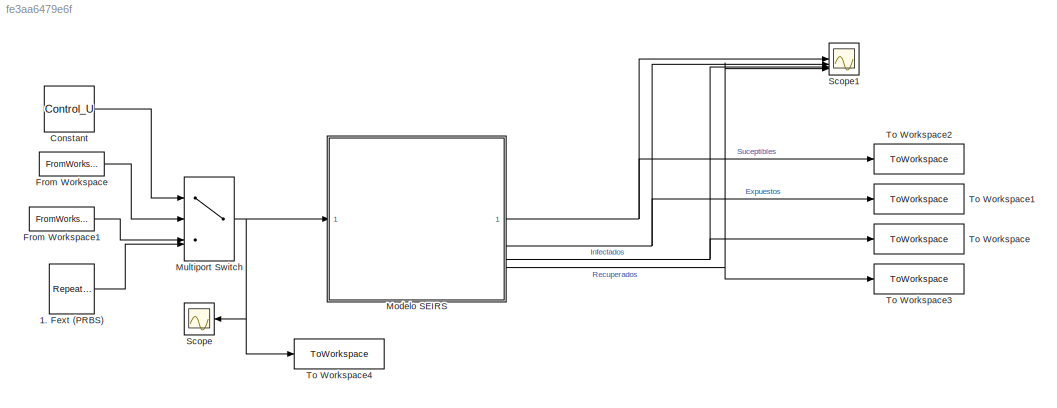
MODEL slx_fe3aa6479e6f
KIND model
CONFIG AbsTol = auto
CONFIG EnableMultiTasking = off
CONFIG FixedStep = auto
CONFIG MaxStep = auto
CONFIG MinStep = auto
CONFIG RelTol = 1e-3
CONFIG SampleTimeConstraint = Unconstrained
CONFIG SolverName = VariableStepAuto
CONFIG StartTime = 0.0
CONFIG StopTime = T
WORKSPACE source: mxarray member
WORKSPACE x = [0.0844291205376 0.0972801431163 0.171504041231 0.000911075297271]
BLOCK [Reference] 1. Fext (PRBS)  REF=simulink/Sources/Repeating
Sequence
Stair
  SourceBlock = simulink/Sources/Repeating\nSequence\nStair
  SourceType = Repeating Sequence Stair
BLOCK [Constant] Constant
  Value = Control_U
BLOCK [FromWorkspace] From Workspace
  VariableName = beta_U
BLOCK [FromWorkspace] From Workspace1
  VariableName = beta_seno
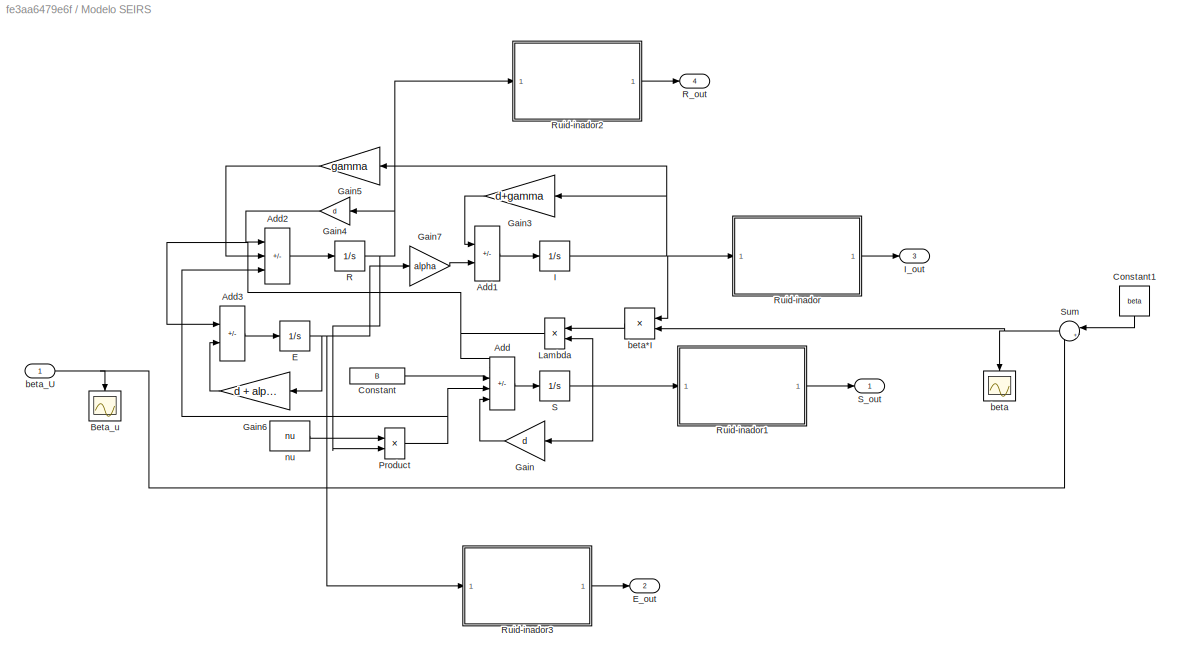
BLOCK [SubSystem] Modelo SEIRS
BLOCK [Sum] Modelo SEIRS/Add
  IconShape = rectangular
  Inputs = -++-
BLOCK [Sum] Modelo SEIRS/Add1
  IconShape = rectangular
  Inputs = -+
BLOCK [Sum] Modelo SEIRS/Add2
  IconShape = rectangular
  Inputs = -+-
BLOCK [Sum] Modelo SEIRS/Add3
  IconShape = rectangular
  Inputs = +-
BLOCK [Scope] Modelo SEIRS/Beta_u
  Floating = off
  NumInputPorts = 1
  ScopeSpecificationString = Simulink.scopes.TimeScopeBlockCfg('CurrentConfiguration', extmgr.ConfigurationSet(extmgr.Configuration('Core','General UI',true),extmgr.Configuration('Core','Source UI',true),extmgr.Configuration('Sources','WiredSimulink',true,'DataLoggingVariableName','ScopeData2'),extmgr.Configuration('Visuals','Time Domain',true,'SerializedDisplays',{struct('MinYLimReal','-1.00000','MaxYLimReal','1.00000','YLab...<+1419ch>
BLOCK [Constant] Modelo SEIRS/Constant
  Value = B
BLOCK [Constant] Modelo SEIRS/Constant1
  NameLocation = left
  Value = beta
BLOCK [Integrator] Modelo SEIRS/E
  InitialCondition = ci(2)
  LimitOutput = on
  LowerSaturationLimit = 0
BLOCK [Outport] Modelo SEIRS/E_out
  Port = 2
BLOCK [Gain] Modelo SEIRS/Gain
  Gain = d
  NameLocation = top
BLOCK [Gain] Modelo SEIRS/Gain3
  Gain = d+gamma
  NameLocation = top
BLOCK [Gain] Modelo SEIRS/Gain4
  Gain = d
  NameLocation = top
BLOCK [Gain] Modelo SEIRS/Gain5
  Gain = gamma
  NameLocation = top
BLOCK [Gain] Modelo SEIRS/Gain6
  Gain = d + alpha
  NameLocation = top
BLOCK [Gain] Modelo SEIRS/Gain7
  Gain = alpha
BLOCK [Integrator] Modelo SEIRS/I
  InitialCondition = ci(3)
  LimitOutput = on
  LowerSaturationLimit = 0
BLOCK [Outport] Modelo SEIRS/I_out 
  Port = 3
BLOCK [Product] Modelo SEIRS/Lambda
  NameLocation = top
BLOCK [Product] Modelo SEIRS/Product
BLOCK [Integrator] Modelo SEIRS/R
  InitialCondition = ci(4)
  LimitOutput = on
  LowerSaturationLimit = 0
BLOCK [Outport] Modelo SEIRS/R_out
  Port = 4
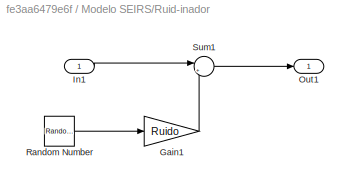
BLOCK [SubSystem] Modelo SEIRS/Ruid-inador
BLOCK [Gain] Modelo SEIRS/Ruid-inador/Gain1
  Gain = Ruido
BLOCK [Inport] Modelo SEIRS/Ruid-inador/In1
BLOCK [Outport] Modelo SEIRS/Ruid-inador/Out1
BLOCK [RandomNumber] Modelo SEIRS/Ruid-inador/Random Number
  SampleTime = 0.1
  Seed = 117
  Variance = 1e-8
BLOCK [Sum] Modelo SEIRS/Ruid-inador/Sum1
  Inputs = |++
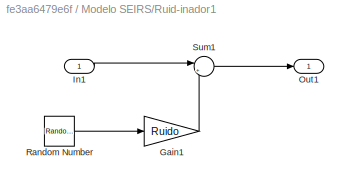
BLOCK [SubSystem] Modelo SEIRS/Ruid-inador1
BLOCK [Gain] Modelo SEIRS/Ruid-inador1/Gain1
  Gain = Ruido
BLOCK [Inport] Modelo SEIRS/Ruid-inador1/In1
BLOCK [Outport] Modelo SEIRS/Ruid-inador1/Out1
BLOCK [RandomNumber] Modelo SEIRS/Ruid-inador1/Random Number
  SampleTime = 0.1
  Seed = 117
  Variance = 1e-8
BLOCK [Sum] Modelo SEIRS/Ruid-inador1/Sum1
  Inputs = |++
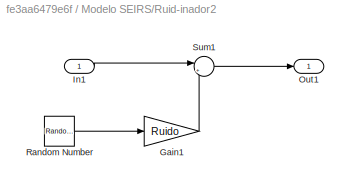
BLOCK [SubSystem] Modelo SEIRS/Ruid-inador2
BLOCK [Gain] Modelo SEIRS/Ruid-inador2/Gain1
  Gain = Ruido
BLOCK [Inport] Modelo SEIRS/Ruid-inador2/In1
BLOCK [Outport] Modelo SEIRS/Ruid-inador2/Out1
BLOCK [RandomNumber] Modelo SEIRS/Ruid-inador2/Random Number
  SampleTime = 0.1
  Seed = 117
  Variance = 1e-8
BLOCK [Sum] Modelo SEIRS/Ruid-inador2/Sum1
  Inputs = |++
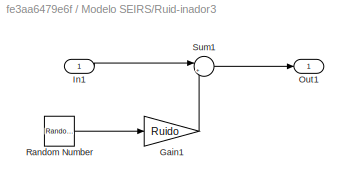
BLOCK [SubSystem] Modelo SEIRS/Ruid-inador3
BLOCK [Gain] Modelo SEIRS/Ruid-inador3/Gain1
  Gain = Ruido
BLOCK [Inport] Modelo SEIRS/Ruid-inador3/In1
BLOCK [Outport] Modelo SEIRS/Ruid-inador3/Out1
BLOCK [RandomNumber] Modelo SEIRS/Ruid-inador3/Random Number
  SampleTime = 0.1
  Seed = 117
  Variance = 1e-8
BLOCK [Sum] Modelo SEIRS/Ruid-inador3/Sum1
  Inputs = |++
BLOCK [Integrator] Modelo SEIRS/S
  InitialCondition = ci(1)
  LimitOutput = on
  LowerSaturationLimit = 0
BLOCK [Outport] Modelo SEIRS/S_out
BLOCK [Sum] Modelo SEIRS/Sum
  Inputs = |++
  NameLocation = top
BLOCK [Scope] Modelo SEIRS/beta
  Floating = off
  NumInputPorts = 1
  ScopeSpecificationString = Simulink.scopes.TimeScopeBlockCfg('CurrentConfiguration', extmgr.ConfigurationSet(extmgr.Configuration('Core','General UI',true),extmgr.Configuration('Core','Source UI',true),extmgr.Configuration('Sources','WiredSimulink',true,'DataLoggingVariableName','ScopeData1'),extmgr.Configuration('Visuals','Time Domain',true,'SerializedDisplays',{struct('MinYLimReal','0.1','MaxYLimReal','0.3','YLabelReal','...<+1382ch>
BLOCK [Product] Modelo SEIRS/beta*I
  NameLocation = top
BLOCK [Inport] Modelo SEIRS/beta_U
BLOCK [Constant] Modelo SEIRS/nu
  Value = nu
BLOCK [MultiPortSwitch] Multiport Switch
  InputSameDT = off
  SaturateOnIntegerOverflow = off
BLOCK [Scope] Scope
  Floating = off
  NameLocation = top
  NumInputPorts = 1
  ScopeSpecificationString = Simulink.scopes.TimeScopeBlockCfg('CurrentConfiguration', extmgr.ConfigurationSet(extmgr.Configuration('Core','General UI',true),extmgr.Configuration('Core','Source UI',true),extmgr.Configuration('Sources','WiredSimulink',true,'DataLoggingVariableName','ScopeData1'),extmgr.Configuration('Visuals','Time Domain',true,'SerializedDisplays',{struct('MinYLimReal','0.475','MaxYLimReal','0.725','YLabelRea...<+1475ch>
BLOCK [Scope] Scope1
  Floating = off
  NumInputPorts = 4
  ScopeSpecificationString = Simulink.scopes.TimeScopeBlockCfg('CurrentConfiguration', extmgr.ConfigurationSet(extmgr.Configuration('Core','General UI',true),extmgr.Configuration('Core','Source UI',true),extmgr.Configuration('Sources','WiredSimulink',true,'DataLoggingVariableName','ScopeData2'),extmgr.Configuration('Visuals','Time Domain',true,'SerializedDisplays',{struct('MinYLimReal','0.10278','MaxYLimReal','0.15173','YLabe...<+3878ch>
BLOCK [ToWorkspace] To Workspace
  FixptAsFi = on
  MaxDataPoints = inf
  SampleTime = -1
  SaveFormat = Structure With Time
  VariableName = I
BLOCK [ToWorkspace] To Workspace1
  FixptAsFi = on
  MaxDataPoints = inf
  SampleTime = -1
  SaveFormat = Structure With Time
  VariableName = E
BLOCK [ToWorkspace] To Workspace2
  FixptAsFi = on
  MaxDataPoints = inf
  SampleTime = -1
  SaveFormat = Structure With Time
  VariableName = S
BLOCK [ToWorkspace] To Workspace3
  FixptAsFi = on
  MaxDataPoints = inf
  SampleTime = -1
  SaveFormat = Structure With Time
  VariableName = R
BLOCK [ToWorkspace] To Workspace4
  FixptAsFi = on
  MaxDataPoints = inf
  SampleTime = -1
  SaveFormat = Structure With Time
  VariableName = Entrada_U
LINE 1. Fext (PRBS):1 -> Multiport Switch:4
LINE Constant:1 -> Multiport Switch:1
LINE From Workspace1:1 -> Multiport Switch:3
LINE From Workspace:1 -> Multiport Switch:2
LINE Modelo SEIRS/Add1:1 -> Modelo SEIRS/I:1
LINE Modelo SEIRS/Add2:1 -> Modelo SEIRS/R:1
LINE Modelo SEIRS/Add3:1 -> Modelo SEIRS/E:1
LINE Modelo SEIRS/Add:1 -> Modelo SEIRS/S:1
LINE Modelo SEIRS/Constant1:1 -> Modelo SEIRS/Sum:1
LINE Modelo SEIRS/Constant:1 -> Modelo SEIRS/Add:2
NET Modelo SEIRS/E:1 -> Modelo SEIRS/Gain6:1, Modelo SEIRS/Gain7:1, Modelo SEIRS/Ruid-inador3:1
LINE Modelo SEIRS/Gain3:1 -> Modelo SEIRS/Add1:1
LINE Modelo SEIRS/Gain4:1 -> Modelo SEIRS/Add2:1
LINE Modelo SEIRS/Gain5:1 -> Modelo SEIRS/Add2:2
LINE Modelo SEIRS/Gain6:1 -> Modelo SEIRS/Add3:2
LINE Modelo SEIRS/Gain7:1 -> Modelo SEIRS/Add1:2
LINE Modelo SEIRS/Gain:1 -> Modelo SEIRS/Add:4
NET Modelo SEIRS/I:1 -> Modelo SEIRS/Gain3:1, Modelo SEIRS/Gain5:1, Modelo SEIRS/Ruid-inador:1, Modelo SEIRS/beta*I:1
NET Modelo SEIRS/Lambda:1 -> Modelo SEIRS/Add3:1, Modelo SEIRS/Add:1
NET Modelo SEIRS/Product:1 -> Modelo SEIRS/Add2:3, Modelo SEIRS/Add:3
NET Modelo SEIRS/R:1 -> Modelo SEIRS/Gain4:1, Modelo SEIRS/Product:2, Modelo SEIRS/Ruid-inador2:1
LINE Modelo SEIRS/Ruid-inador/Gain1:1 -> Modelo SEIRS/Ruid-inador/Sum1:2
LINE Modelo SEIRS/Ruid-inador/In1:1 -> Modelo SEIRS/Ruid-inador/Sum1:1
LINE Modelo SEIRS/Ruid-inador/Random Number:1 -> Modelo SEIRS/Ruid-inador/Gain1:1
LINE Modelo SEIRS/Ruid-inador/Sum1:1 -> Modelo SEIRS/Ruid-inador/Out1:1
LINE Modelo SEIRS/Ruid-inador1/Gain1:1 -> Modelo SEIRS/Ruid-inador1/Sum1:2
LINE Modelo SEIRS/Ruid-inador1/In1:1 -> Modelo SEIRS/Ruid-inador1/Sum1:1
LINE Modelo SEIRS/Ruid-inador1/Random Number:1 -> Modelo SEIRS/Ruid-inador1/Gain1:1
LINE Modelo SEIRS/Ruid-inador1/Sum1:1 -> Modelo SEIRS/Ruid-inador1/Out1:1
LINE Modelo SEIRS/Ruid-inador1:1 -> Modelo SEIRS/S_out:1
LINE Modelo SEIRS/Ruid-inador2/Gain1:1 -> Modelo SEIRS/Ruid-inador2/Sum1:2
LINE Modelo SEIRS/Ruid-inador2/In1:1 -> Modelo SEIRS/Ruid-inador2/Sum1:1
LINE Modelo SEIRS/Ruid-inador2/Random Number:1 -> Modelo SEIRS/Ruid-inador2/Gain1:1
LINE Modelo SEIRS/Ruid-inador2/Sum1:1 -> Modelo SEIRS/Ruid-inador2/Out1:1
LINE Modelo SEIRS/Ruid-inador2:1 -> Modelo SEIRS/R_out:1
LINE Modelo SEIRS/Ruid-inador3/Gain1:1 -> Modelo SEIRS/Ruid-inador3/Sum1:2
LINE Modelo SEIRS/Ruid-inador3/In1:1 -> Modelo SEIRS/Ruid-inador3/Sum1:1
LINE Modelo SEIRS/Ruid-inador3/Random Number:1 -> Modelo SEIRS/Ruid-inador3/Gain1:1
LINE Modelo SEIRS/Ruid-inador3/Sum1:1 -> Modelo SEIRS/Ruid-inador3/Out1:1
LINE Modelo SEIRS/Ruid-inador3:1 -> Modelo SEIRS/E_out:1
LINE Modelo SEIRS/Ruid-inador:1 -> Modelo SEIRS/I_out :1
NET Modelo SEIRS/S:1 -> Modelo SEIRS/Gain:1, Modelo SEIRS/Lambda:2, Modelo SEIRS/Ruid-inador1:1
NET Modelo SEIRS/Sum:1 -> Modelo SEIRS/beta*I:2, Modelo SEIRS/beta:1
LINE Modelo SEIRS/beta*I:1 -> Modelo SEIRS/Lambda:1
NET Modelo SEIRS/beta_U:1 -> Modelo SEIRS/Beta_u:1, Modelo SEIRS/Sum:2
LINE Modelo SEIRS/nu:1 -> Modelo SEIRS/Product:1
NET Modelo SEIRS:1 -> Scope1:1, To Workspace2:1
NET Modelo SEIRS:2 -> Scope1:2, To Workspace1:1
NET Modelo SEIRS:3 -> Scope1:3, To Workspace:1
NET Modelo SEIRS:4 -> Scope1:4, To Workspace3:1
NET Multiport Switch:1 -> Modelo SEIRS:1, Scope:1, To Workspace4:1
note: NET lines group one-source signal fan-out (src -> all destinations, sorted); 1:1 wires keep LINE
